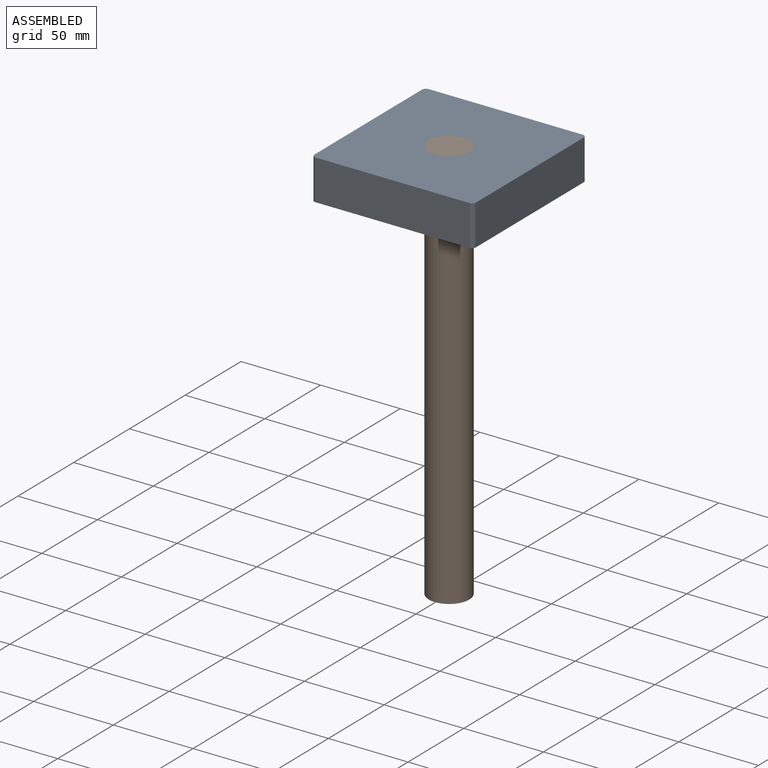
[diagram: assembled view]
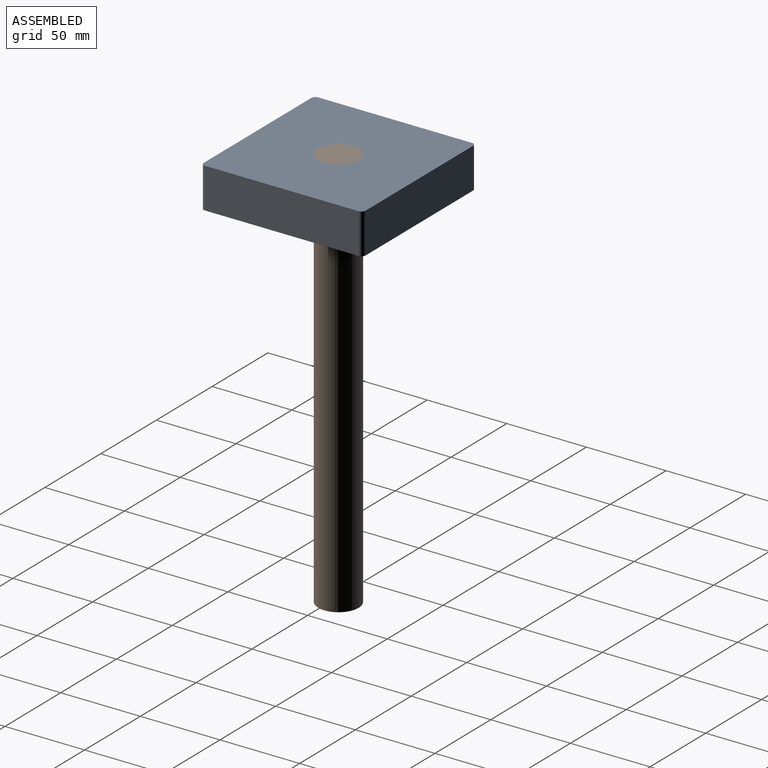
[diagram: assembled view, second angle]
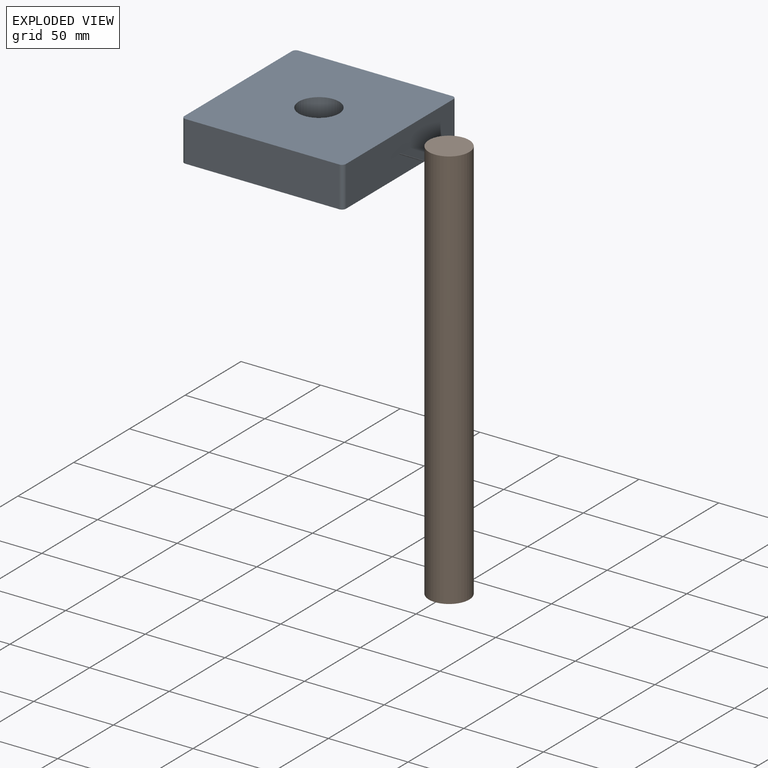
[diagram: exploded view]
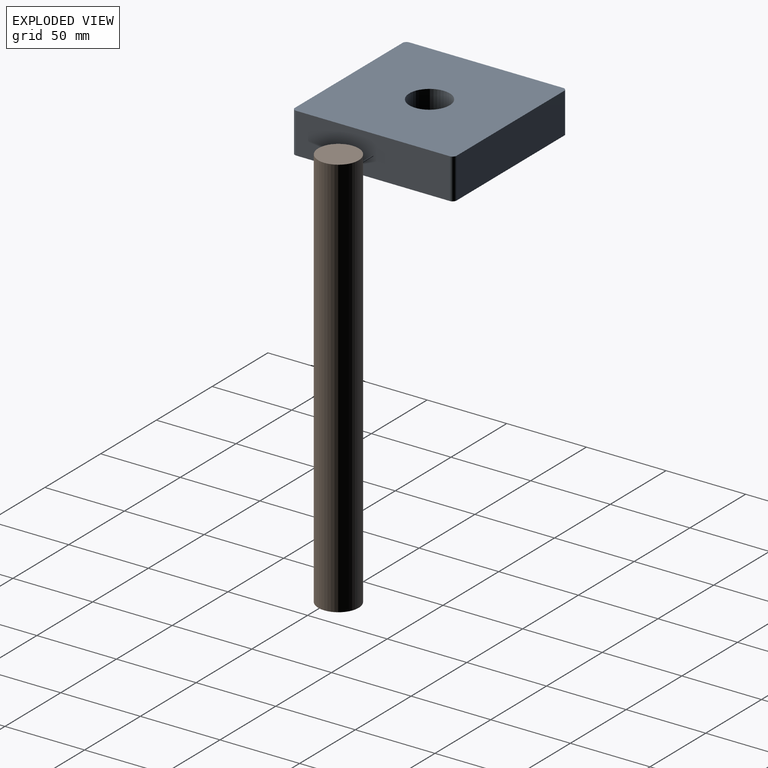
[diagram: exploded view, second angle]
ASSEMBLY  parts=2 mates=2
PART A: 11 faces, bbox 101.6x101.6x25.4 mm
  f0: plane 96.52x25.4mm, normal (1,0,0), area 2451.6mm2, adj f1,f7,f8,f9
  f1: cylinder r=2.54mm len=25.4mm, axis (0,0,-1), area 101.3mm2, adj f0,f2,f8,f9
  f2: plane 96.52x25.4mm, normal (0,1,0), area 2451.6mm2, adj f1,f3,f8,f9
  f3: cylinder r=2.54mm len=25.4mm, axis (0,0,-1), area 101.3mm2, adj f2,f4,f8,f9
  f4: plane 96.52x25.4mm, normal (-1,0,0), area 2451.6mm2, adj f3,f5,f8,f9
  f5: cylinder r=2.54mm len=25.4mm, axis (0,0,-1), area 101.3mm2, adj f4,f6,f8,f9
  f6: plane 96.52x25.4mm, normal (0,-1,0), area 2451.6mm2, adj f5,f7,f8,f9
  f7: cylinder r=2.54mm len=25.4mm, axis (0,0,-1), area 101.3mm2, adj f0,f6,f8,f9
  f8: plane 101.6x101.6mm, normal (0,0,1), area 9810.3mm2, adj f0,f1,f2,f3,f4,f5,f6,f7
  f9: plane 101.6x101.6mm, normal (0,0,-1), area 9810.3mm2, adj f0,f1,f2,f3,f4,f5,f6,f7
  f10: cylinder r=12.7mm len=25.4mm, axis (0,0,1), area 2026.8mm2, adj f8,f9
PART B: 3 faces, bbox 25.4x25.4x254 mm
  f0: cylinder r=12.7mm len=254mm, axis (0,0,-1), area 20268.3mm2, adj f1,f2
  f1: plane 25.4x25.4mm, normal (0,0,1), area 506.7mm2, adj f0
  f2: plane 25.4x25.4mm, normal (0,0,-1), area 506.7mm2, adj f0
PLACE A t=(151.79,155.65,123.28)mm
PLACE B t=(151.79,155.65,8.98)mm
MATE cylindrical A.f10 <-> B.f0  axis (0,0,1) through (151.79,155.65,135.98)mm
MATE parallel A.f8 <-> B.f0  axis (0,0,1) through (151.79,104.85,135.98)mm
